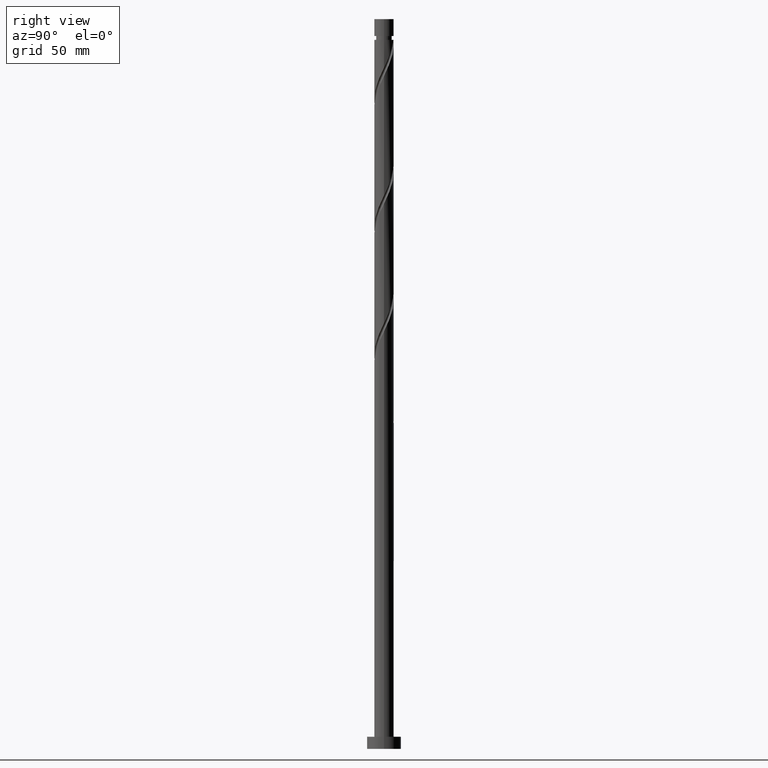
[diagram: clean part render]
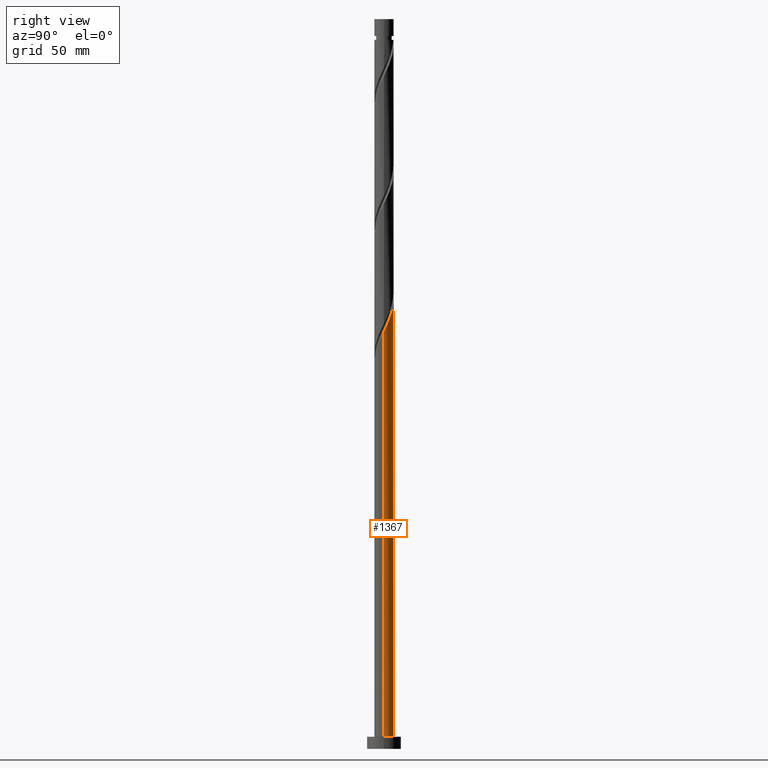
[diagram: same view with one face highlighted and labeled with its STEP entity id]
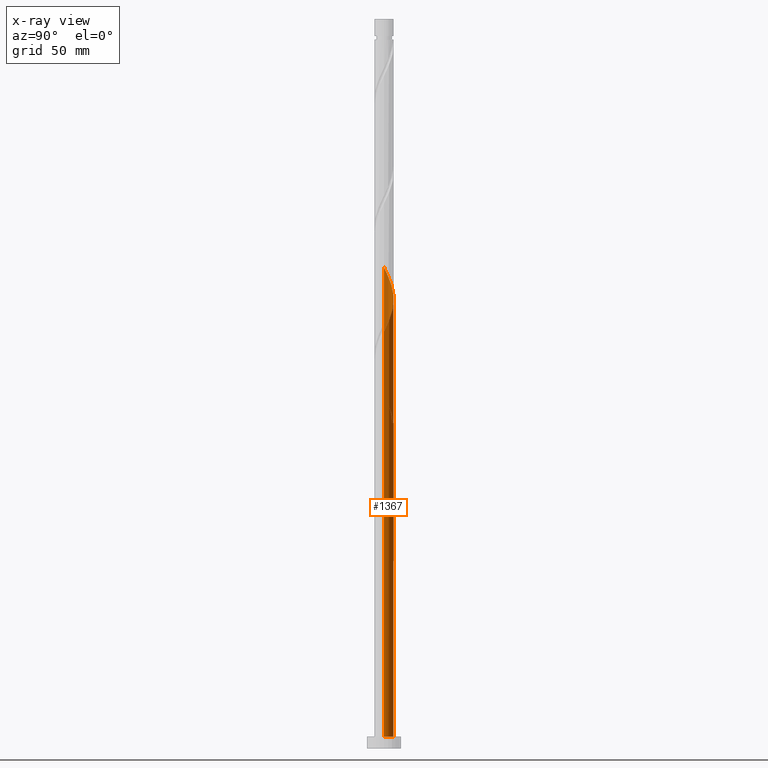
[diagram: x-ray of the same camera — body ghosted, the highlighted face saturated]
A machine part, right view. The second image highlights one B-rep face of the part: STEP entity #1367.
The next image is the same camera in x-ray: the body ghosted, the highlighted face saturated — about 0% of this face is hidden behind the body in this view.
In plain terms, the highlighted cylindrical surface (edge-blend (fillet) strip) has radius 4 mm, axis along (-0, -0, -1).
Its self-contained STEP definition (entity closure, byte-faithful):
#9 = CARTESIAN_POINT ( 'NONE',  ( -0.3543120252768621192, 4.009686527761989971, 185.5166729475624265 ) ) ;
#16 = CARTESIAN_POINT ( 'NONE',  ( 2.913989227796204950, 2.777010954688415634, 178.0166729475624265 ) ) ;
#38 = CARTESIAN_POINT ( 'NONE',  ( -1.648314880873156918, 3.644592988728940774, 135.8291729475624265 ) ) ;
#50 = CARTESIAN_POINT ( 'NONE',  ( -2.417986421170497557, 3.186430866508032977, 137.7041729475624265 ) ) ;
#58 = CARTESIAN_POINT ( 'NONE',  ( -4.000000000000000000, 0.000000000000000000, 300.0000000000000000 ) ) ;
#74 = CARTESIAN_POINT ( 'NONE',  ( -3.987997157791141500, 0.5468105079655638523, 196.7666729475624550 ) ) ;
#96 = CARTESIAN_POINT ( 'NONE',  ( 4.000000000000000000, 4.898587196589412829E-16, 5.000000000000000000 ) ) ;
#113 = CARTESIAN_POINT ( 'NONE',  ( -3.458872505219855675, 2.058961887652576817, 144.2666729475624265 ) ) ;
#120 = CARTESIAN_POINT ( 'NONE',  ( -2.913989227796199621, 2.777010954688412081, 142.3916729475624550 ) ) ;
#139 = CARTESIAN_POINT ( 'NONE',  ( 3.186430866508034754, 2.417986421170496669, 177.0791729475623981 ) ) ;
#148 = CARTESIAN_POINT ( 'NONE',  ( -4.000000000000000000, 0.000000000000000000, 300.0000000000000000 ) ) ;
#153 = CARTESIAN_POINT ( 'NONE',  ( 2.568487795263851847, 3.066410025678347306, 178.9541729475623981 ) ) ;
#157 = CARTESIAN_POINT ( 'NONE',  ( -0.9836620935111607400, 3.877165057846935436, 137.7041729475624265 ) ) ;
#163 = EDGE_CURVE ( 'NONE', #1877, #876, #1521, .T. ) ;
#169 = CARTESIAN_POINT ( 'NONE',  ( -3.066410025678347306, 2.568487795263850959, 192.0791729475624550 ) ) ;
#172 = DIRECTION ( 'NONE',  ( -0.000000000000000000, -0.000000000000000000, -1.000000000000000000 ) ) ;
#218 = DIRECTION ( 'NONE',  ( -1.000000000000000000, 0.000000000000000000, 0.000000000000000000 ) ) ;
#285 = CARTESIAN_POINT ( 'NONE',  ( 0.7959899496852993472, 3.919999999999999041, 133.9541729475624265 ) ) ;
#301 = ORIENTED_EDGE ( 'NONE', *, *, #577, .F. ) ;
#310 = CIRCLE ( 'NONE', #1816, 4.000000000000000000 ) ;
#312 = CARTESIAN_POINT ( 'NONE',  ( -0.7959899496852976819, 3.920000000000005258, 186.4541729475624265 ) ) ;
#320 = CARTESIAN_POINT ( 'NONE',  ( -3.766332957902740475, 1.420513679056762291, 194.8916729475623697 ) ) ;
#341 = ORIENTED_EDGE ( 'NONE', *, *, #1798, .F. ) ;
#359 = CARTESIAN_POINT ( 'NONE',  ( -4.000000000000005329, 0.04813158866555651560, 145.3042931814313192 ) ) ;
#371 = DIRECTION ( 'NONE',  ( 0.000000000000000000, -0.000000000000000000, -1.000000000000000000 ) ) ;
#438 = FACE_OUTER_BOUND ( 'NONE', #1413, .T. ) ;
#442 = CARTESIAN_POINT ( 'NONE',  ( 3.644592988728941219, 1.648314880873156474, 175.2041729475624265 ) ) ;
#460 = CARTESIAN_POINT ( 'NONE',  ( -2.777010954688416522, 2.913989227796204950, 191.1416729475623413 ) ) ;
#470 = CARTESIAN_POINT ( 'NONE',  ( -3.766332957902740475, 1.420513679056762291, 142.3916729475624550 ) ) ;
#510 = VERTEX_POINT ( 'NONE', #862 ) ;
#570 = CARTESIAN_POINT ( 'NONE',  ( -2.222986362731492527, 3.355809096668277203, 140.5166729475623697 ) ) ;
#575 = VECTOR ( 'NONE', #1695, 1000.000000000000000 ) ;
#577 = EDGE_CURVE ( 'NONE', #1390, #1185, #1011, .T. ) ;
#588 = CARTESIAN_POINT ( 'NONE',  ( 3.920000000000005258, 0.7959899496852977929, 173.3291729475625118 ) ) ;
#597 = CARTESIAN_POINT ( 'NONE',  ( -2.417986421170497557, 3.186430866508032977, 190.2041729475624265 ) ) ;
#616 = LINE ( 'NONE', #1514, #1381 ) ;
#637 = AXIS2_PLACEMENT_3D ( 'NONE', #1022, #1908, #1289 ) ;
#652 = EDGE_CURVE ( 'NONE', #510, #1390, #1478, .T. ) ;
#671 = CARTESIAN_POINT ( 'NONE',  ( 4.000000000000005329, 6.119567143825683200E-16, 171.6546558696563807 ) ) ;
#678 = AXIS2_PLACEMENT_3D ( 'NONE', #1827, #1868, #1091 ) ;
#711 = CARTESIAN_POINT ( 'NONE',  ( -2.568487795263846518, 3.066410025678343754, 141.4541729475624265 ) ) ;
#721 = CARTESIAN_POINT ( 'NONE',  ( -3.999999999999998224, 0.4020151261036926105, 147.9154189465048432 ) ) ;
#742 = DIRECTION ( 'NONE',  ( -0.000000000000000000, -0.000000000000000000, -1.000000000000000000 ) ) ;
#761 = CARTESIAN_POINT ( 'NONE',  ( -3.877165057846941654, 0.9836620935111629604, 143.3291729475624550 ) ) ;
#774 = CARTESIAN_POINT ( 'NONE',  ( -4.000000000000005329, -1.208987655243610677E-15, 145.4046558696563807 ) ) ;
#779 = VERTEX_POINT ( 'NONE', #96 ) ;
#786 = CARTESIAN_POINT ( 'NONE',  ( -2.058961887652579037, 3.458872505219861004, 136.7666729475624550 ) ) ;
#792 = VECTOR ( 'NONE', #742, 1000.000000000000000 ) ;
#822 = VERTEX_POINT ( 'NONE', #671 ) ;
#862 = CARTESIAN_POINT ( 'NONE',  ( -4.000000000000005329, 9.933102278575590160E-15, 197.9046558696562954 ) ) ;
#874 = CARTESIAN_POINT ( 'NONE',  ( 4.000000000000005329, 0.4020151261036918888, 172.4929269486200099 ) ) ;
#876 = VERTEX_POINT ( 'NONE', #1430 ) ;
#898 = CARTESIAN_POINT ( 'NONE',  ( -0.09624924134434953427, 3.998841842776559741, 135.8291729475624550 ) ) ;
#905 = CARTESIAN_POINT ( 'NONE',  ( -2.058961887652579037, 3.458872505219861004, 189.2666729475624265 ) ) ;
#940 = CARTESIAN_POINT ( 'NONE',  ( -3.561071027285510837, 1.821750020894129074, 141.4541729475624265 ) ) ;
#963 = CARTESIAN_POINT ( 'NONE',  ( -3.998841842776565958, 0.09624924134435045020, 197.7041729475624265 ) ) ;
#1011 =( BOUNDED_CURVE ( )  B_SPLINE_CURVE ( 2, ( #1881, #721, #1858, #1445, #1733, #113, #1892, #120, #711, #570, #1154, #1751, #157, #1048, #898, #1161, #285 ),
 .UNSPECIFIED., .F., .T. ) 
 B_SPLINE_CURVE_WITH_KNOTS ( ( 3, 2, 2, 2, 2, 2, 2, 2, 3 ),
 ( 0.9295303401299221946, 0.9375000000000000000, 0.9464285714285713969, 0.9553571428571429047, 0.9642857142857143016, 0.9732142857142856984, 0.9821428571428570953, 0.9910714285714286031, 1.000000000000000000 ),
 .UNSPECIFIED. ) 
 CURVE ( )  GEOMETRIC_REPRESENTATION_ITEM ( )  RATIONAL_B_SPLINE_CURVE ( ( 0.9079949616362034126, 0.9039886423360666834, 0.9090909090909334855, 0.9033747362666083580, 0.9090909090909334855, 0.9033747362666083580, 0.9090909090909334855, 0.9033747362666083580, 0.9090909090909334855, 0.9033747362666083580, 0.9090909090909334855, 0.9033747362666083580, 0.9090909090909334855, 0.9033747362666083580, 0.9090909090909334855, 0.9033747362666083580, 0.9090909090909334855 ) ) 
 REPRESENTATION_ITEM ( '' )  );
#1022 = CARTESIAN_POINT ( 'NONE',  ( 0.000000000000000000, 0.000000000000000000, 300.0000000000000000 ) ) ;
#1026 = CARTESIAN_POINT ( 'NONE',  ( 3.458872505219861448, 2.058961887652578149, 176.1416729475624834 ) ) ;
#1035 = CARTESIAN_POINT ( 'NONE',  ( 0.5468105079655646295, 3.987997157791141500, 183.6416729475624834 ) ) ;
#1044 = CARTESIAN_POINT ( 'NONE',  ( -3.355809096668281200, 2.222986362731496079, 193.0166729475624265 ) ) ;
#1048 = CARTESIAN_POINT ( 'NONE',  ( -0.5468105079655622980, 3.987997157791136171, 136.7666729475623981 ) ) ;
#1091 = DIRECTION ( 'NONE',  ( 1.000000000000000000, 0.000000000000000000, 0.000000000000000000 ) ) ;
#1098 = CARTESIAN_POINT ( 'NONE',  ( -2.777010954688416522, 2.913989227796204950, 138.6416729475623981 ) ) ;
#1125 = CARTESIAN_POINT ( 'NONE',  ( -4.000000000000005329, 9.933102278575590160E-15, 197.9046558696562954 ) ) ;
#1134 = CARTESIAN_POINT ( 'NONE',  ( -4.000000000000003553, 0.04813158866557742249, 197.8042931814312340 ) ) ;
#1154 = CARTESIAN_POINT ( 'NONE',  ( -1.821750020894125521, 3.561071027285505952, 139.5791729475624550 ) ) ;
#1161 = CARTESIAN_POINT ( 'NONE',  ( 0.3543120252768630074, 4.009686527761982866, 134.8916729475624265 ) ) ;
#1183 = CARTESIAN_POINT ( 'NONE',  ( 0.9836620935111639596, 3.877165057846941654, 182.7041729475624550 ) ) ;
#1185 = VERTEX_POINT ( 'NONE', #1853 ) ;
#1190 = CARTESIAN_POINT ( 'NONE',  ( -1.237667874093734799, 3.830313472238021433, 187.3916729475623981 ) ) ;
#1201 =( BOUNDED_CURVE ( )  B_SPLINE_CURVE ( 2, ( #1251, #1689, #38, #786, #50, #1098, #1499, #1513, #940, #470, #761, #1802, #1217, #359, #1541 ),
 .UNSPECIFIED., .F., .T. ) 
 B_SPLINE_CURVE_WITH_KNOTS ( ( 3, 2, 2, 2, 2, 2, 2, 3 ),
 ( 0.000000000000000000, 0.008928571428571396851, 0.01785714285714290472, 0.02678571428571430504, 0.03571428571428569843, 0.04464285714285709528, 0.05357142857142861009, 0.05453034012992215990 ),
 .UNSPECIFIED. ) 
 CURVE ( )  GEOMETRIC_REPRESENTATION_ITEM ( )  RATIONAL_B_SPLINE_CURVE ( ( 0.9090909090909393697, 0.9033747362666143532, 0.9090909090909393697, 0.9033747362666143532, 0.9090909090909393697, 0.9033747362666143532, 0.9090909090909393697, 0.9033747362666143532, 0.9090909090909393697, 0.9033747362666143532, 0.9090909090909393697, 0.9033747362666143532, 0.9090909090909393697, 0.9084770030214811554, 0.9079949616362095188 ) ) 
 REPRESENTATION_ITEM ( '' )  );
#1214 = EDGE_CURVE ( 'NONE', #779, #876, #1421, .T. ) ;
#1217 = CARTESIAN_POINT ( 'NONE',  ( -3.998841842776565958, 0.09624924134435045020, 145.2041729475624265 ) ) ;
#1251 = CARTESIAN_POINT ( 'NONE',  ( -0.7959899496852977929, 3.920000000000005258, 133.9541729475624265 ) ) ;
#1289 = DIRECTION ( 'NONE',  ( -1.000000000000000000, 0.000000000000000000, 0.000000000000000000 ) ) ;
#1316 = CARTESIAN_POINT ( 'NONE',  ( -3.999999999999998224, 2.194088707664344929E-15, 148.7536900254684724 ) ) ;
#1330 = ORIENTED_EDGE ( 'NONE', *, *, #1470, .T. ) ;
#1367 = ADVANCED_FACE ( 'NONE', ( #438 ), #1888, .T. ) ;
#1375 = ORIENTED_EDGE ( 'NONE', *, *, #1459, .F. ) ;
#1381 = VECTOR ( 'NONE', #172, 1000.000000000000000 ) ;
#1390 = VERTEX_POINT ( 'NONE', #1316 ) ;
#1413 = EDGE_LOOP ( 'NONE', ( #1375, #1330, #1838, #1568, #341, #1852, #301, #1570 ) ) ;
#1421 = CIRCLE ( 'NONE', #678, 4.000000000000000000 ) ;
#1430 = CARTESIAN_POINT ( 'NONE',  ( -4.000000000000000000, 0.000000000000000000, 5.000000000000000000 ) ) ;
#1445 = CARTESIAN_POINT ( 'NONE',  ( -3.830313472238014771, 1.237667874093733245, 146.1416729475624550 ) ) ;
#1459 = EDGE_CURVE ( 'NONE', #822, #510, #1686, .T. ) ;
#1470 = EDGE_CURVE ( 'NONE', #822, #779, #616, .T. ) ;
#1474 = CARTESIAN_POINT ( 'NONE',  ( 1.821750020894129518, 3.561071027285510837, 180.8291729475623981 ) ) ;
#1478 = LINE ( 'NONE', #148, #792 ) ;
#1491 = CARTESIAN_POINT ( 'NONE',  ( 4.000000000000005329, 6.119567143825683200E-16, 171.6546558696563807 ) ) ;
#1499 = CARTESIAN_POINT ( 'NONE',  ( -3.066410025678347306, 2.568487795263850959, 139.5791729475624834 ) ) ;
#1511 = CARTESIAN_POINT ( 'NONE',  ( -0.7959899496852977929, 3.920000000000005258, 133.9541729475624265 ) ) ;
#1513 = CARTESIAN_POINT ( 'NONE',  ( -3.355809096668281200, 2.222986362731496079, 140.5166729475624550 ) ) ;
#1514 = CARTESIAN_POINT ( 'NONE',  ( 4.000000000000000000, 4.898587196589412829E-16, 300.0000000000000000 ) ) ;
#1521 = LINE ( 'NONE', #58, #575 ) ;
#1541 = CARTESIAN_POINT ( 'NONE',  ( -4.000000000000005329, -1.208987655243610677E-15, 145.4046558696563807 ) ) ;
#1568 = ORIENTED_EDGE ( 'NONE', *, *, #163, .F. ) ;
#1570 = ORIENTED_EDGE ( 'NONE', *, *, #652, .F. ) ;
#1632 = CARTESIAN_POINT ( 'NONE',  ( 2.222986362731496524, 3.355809096668280755, 179.8916729475624265 ) ) ;
#1648 = CARTESIAN_POINT ( 'NONE',  ( -3.561071027285510837, 1.821750020894129074, 193.9541729475624265 ) ) ;
#1656 = CARTESIAN_POINT ( 'NONE',  ( -1.648314880873156918, 3.644592988728940774, 188.3291729475624550 ) ) ;
#1679 = VERTEX_POINT ( 'NONE', #1511 ) ;
#1686 =( BOUNDED_CURVE ( )  B_SPLINE_CURVE ( 2, ( #1491, #874, #588, #1767, #442, #1026, #139, #16, #153, #1632, #1474, #1793, #1183, #1035, #1777, #9, #312, #1190, #1656, #905, #597, #460, #169, #1044, #1648, #320, #1834, #74, #963, #1134, #1125 ),
 .UNSPECIFIED., .F., .T. ) 
 B_SPLINE_CURVE_WITH_KNOTS ( ( 3, 2, 2, 2, 2, 2, 2, 2, 2, 2, 2, 2, 2, 2, 2, 3 ),
 ( 0.1795303401299221946, 0.1875000000000000000, 0.1964285714285713969, 0.2053571428571429047, 0.2142857142857143016, 0.2232142857142856984, 0.2321428571428570953, 0.2410714285714286031, 0.2500000000000000000, 0.2589285714285713969, 0.2678571428571429047, 0.2767857142857143016, 0.2857142857142856984, 0.2946428571428570953, 0.3035714285714286031, 0.3045303401299217505 ),
 .UNSPECIFIED. ) 
 CURVE ( )  GEOMETRIC_REPRESENTATION_ITEM ( )  RATIONAL_B_SPLINE_CURVE ( ( 0.9079949616362092968, 0.9039886423360726786, 0.9090909090909393697, 0.9033747362666143532, 0.9090909090909393697, 0.9033747362666143532, 0.9090909090909393697, 0.9033747362666143532, 0.9090909090909393697, 0.9033747362666143532, 0.9090909090909393697, 0.9033747362666143532, 0.9090909090909393697, 0.9033747362666143532, 0.9090909090909393697, 0.9033747362666143532, 0.9090909090909393697, 0.9033747362666143532, 0.9090909090909393697, 0.9033747362666143532, 0.9090909090909393697, 0.9033747362666143532, 0.9090909090909393697, 0.9033747362666143532, 0.9090909090909393697, 0.9033747362666143532, 0.9090909090909393697, 0.9033747362666143532, 0.9090909090909393697, 0.9084770030214813774, 0.9079949616362098519 ) ) 
 REPRESENTATION_ITEM ( '' )  );
#1689 = CARTESIAN_POINT ( 'NONE',  ( -1.237667874093734799, 3.830313472238021433, 134.8916729475624265 ) ) ;
#1695 = DIRECTION ( 'NONE',  ( -0.000000000000000000, -0.000000000000000000, -1.000000000000000000 ) ) ;
#1699 = CARTESIAN_POINT ( 'NONE',  ( 0.000000000000000000, 0.000000000000000000, 133.9541729475624550 ) ) ;
#1733 = CARTESIAN_POINT ( 'NONE',  ( -3.644592988728935445, 1.648314880873155142, 145.2041729475624265 ) ) ;
#1751 = CARTESIAN_POINT ( 'NONE',  ( -1.420513679056759626, 3.766332957902735590, 138.6416729475624265 ) ) ;
#1767 = CARTESIAN_POINT ( 'NONE',  ( 3.830313472238021433, 1.237667874093733911, 174.2666729475624265 ) ) ;
#1777 = CARTESIAN_POINT ( 'NONE',  ( 0.09624924134435140777, 3.998841842776565958, 184.5791729475624550 ) ) ;
#1793 = CARTESIAN_POINT ( 'NONE',  ( 1.420513679056762957, 3.766332957902740475, 181.7666729475623981 ) ) ;
#1798 = EDGE_CURVE ( 'NONE', #1679, #1877, #1201, .T. ) ;
#1802 = CARTESIAN_POINT ( 'NONE',  ( -3.987997157791141500, 0.5468105079655638523, 144.2666729475624265 ) ) ;
#1814 = EDGE_CURVE ( 'NONE', #1679, #1185, #310, .T. ) ;
#1816 = AXIS2_PLACEMENT_3D ( 'NONE', #1699, #371, #218 ) ;
#1827 = CARTESIAN_POINT ( 'NONE',  ( 0.000000000000000000, 0.000000000000000000, 5.000000000000000000 ) ) ;
#1834 = CARTESIAN_POINT ( 'NONE',  ( -3.877165057846941654, 0.9836620935111629604, 195.8291729475624834 ) ) ;
#1838 = ORIENTED_EDGE ( 'NONE', *, *, #1214, .T. ) ;
#1852 = ORIENTED_EDGE ( 'NONE', *, *, #1814, .T. ) ;
#1853 = CARTESIAN_POINT ( 'NONE',  ( 0.7959899496852993472, 3.919999999999999041, 133.9541729475624265 ) ) ;
#1858 = CARTESIAN_POINT ( 'NONE',  ( -3.919999999999999041, 0.7959899496852982370, 147.0791729475624550 ) ) ;
#1868 = DIRECTION ( 'NONE',  ( 0.000000000000000000, 0.000000000000000000, 1.000000000000000000 ) ) ;
#1877 = VERTEX_POINT ( 'NONE', #774 ) ;
#1881 = CARTESIAN_POINT ( 'NONE',  ( -3.999999999999998224, 2.194088707664344929E-15, 148.7536900254684724 ) ) ;
#1888 = CYLINDRICAL_SURFACE ( 'NONE', #637, 4.000000000000000000 ) ;
#1892 = CARTESIAN_POINT ( 'NONE',  ( -3.186430866508028092, 2.417986421170494449, 143.3291729475624550 ) ) ;
#1908 = DIRECTION ( 'NONE',  ( -0.000000000000000000, -0.000000000000000000, -1.000000000000000000 ) ) ;